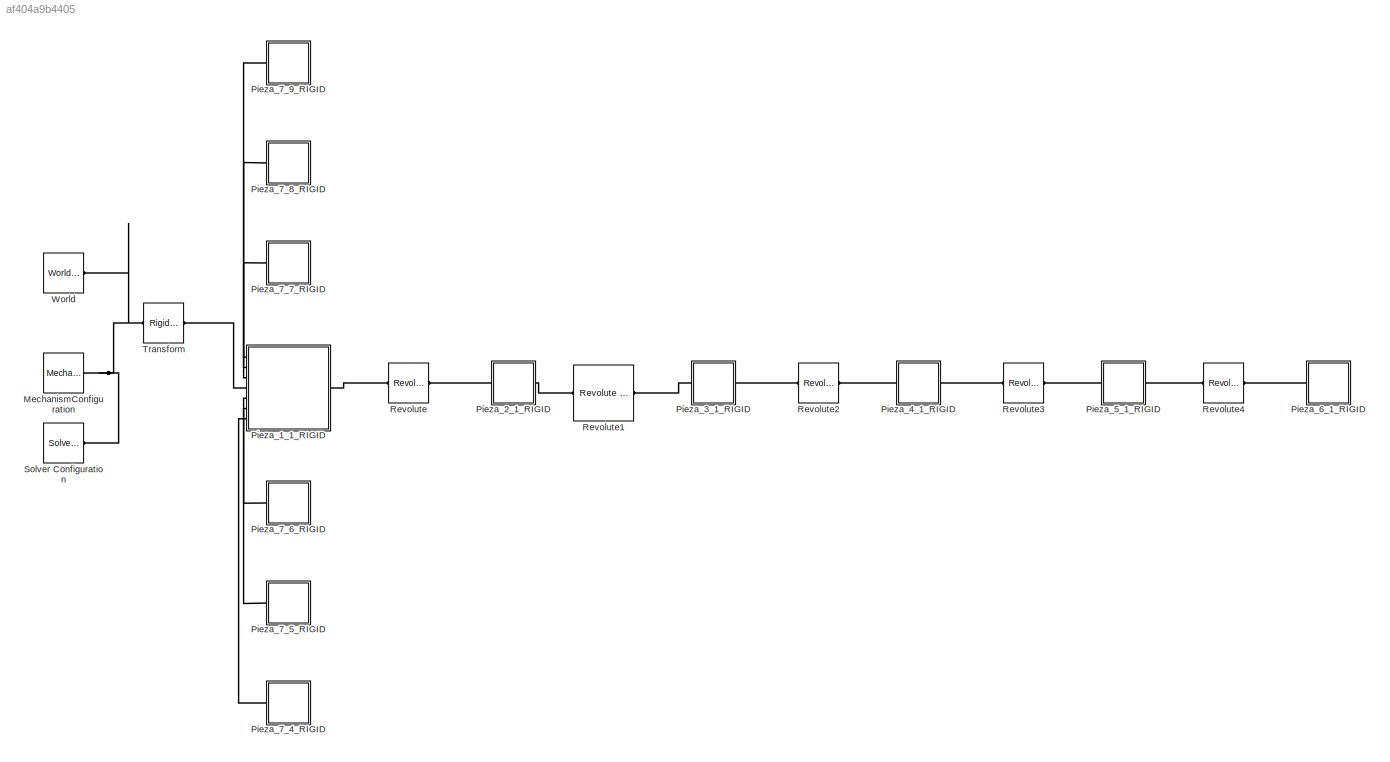
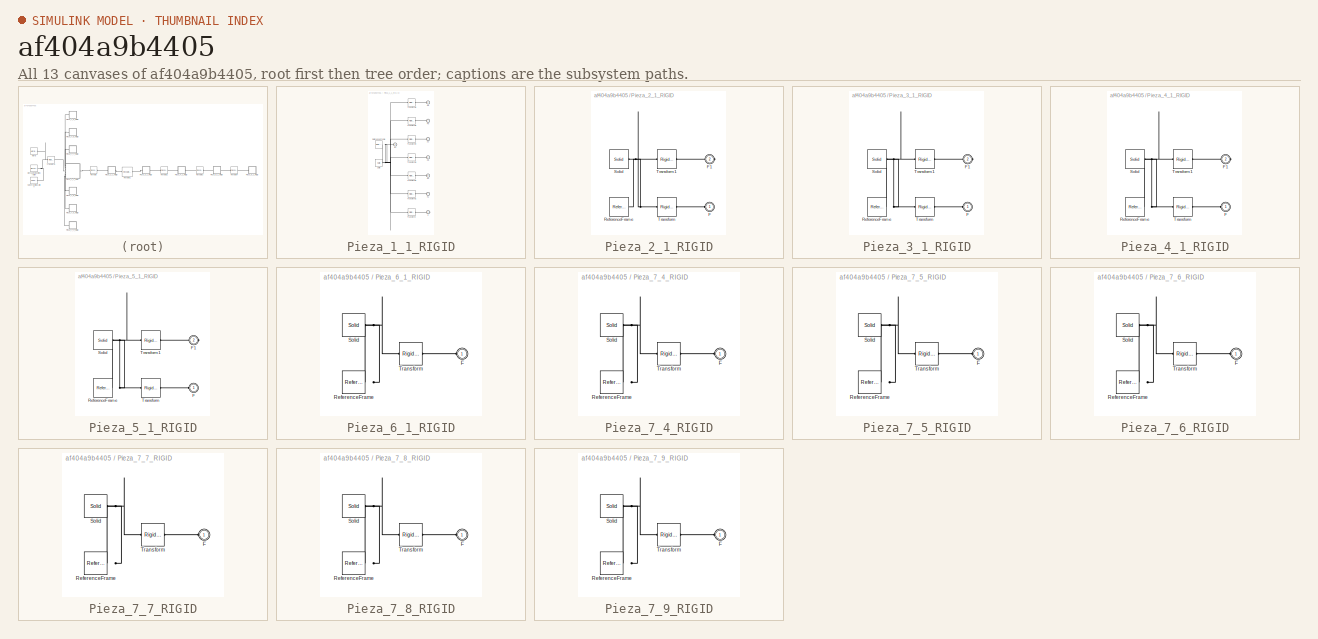
[diagram: thumbnail index - all 13 canvases of the model, root first then tree order]
MODEL slx_af404a9b4405
KIND model
CONFIG AbsTol = auto
CONFIG EnableMultiTasking = off
CONFIG FixedStep = auto
CONFIG MaxStep = auto
CONFIG MinStep = auto
CONFIG RelTol = 1e-3
CONFIG SampleTimeConstraint = Unconstrained
CONFIG Solver = VariableStepAuto
CONFIG SolverName = VariableStepAuto
CONFIG StartTime = 0.0
CONFIG StopTime = 10.0
WORKSPACE source: external: MATLAB File  (data not in archive)
BLOCK [Reference] MechanismConfiguration  REF=sm_lib/Utilities/Mechanism
Configuration
  Ports = [0, 0, 0, 0, 0, 0, 1]
  SourceBlock = sm_lib/Utilities/Mechanism\nConfiguration
  SourceProductBaseCode = MS
  SourceProductName = Simscape Multibody
  SourceType = Mechanism\nConfiguration
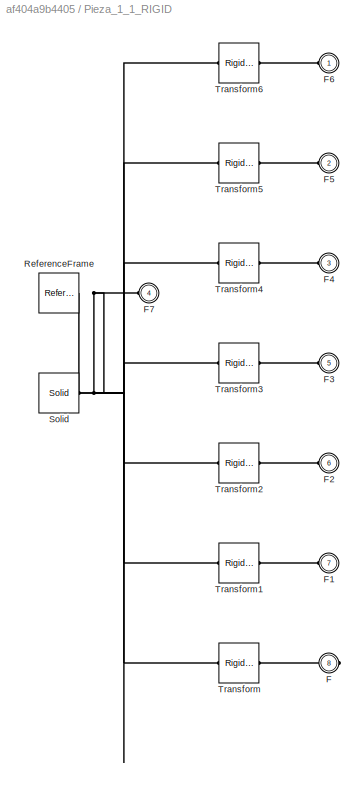
BLOCK [SubSystem] Pieza_1_1_RIGID
  Ports = [0, 0, 0, 0, 0, 7, 1]
  RequestExecContextInheritance = off
BLOCK [PMIOPort] Pieza_1_1_RIGID/F
  Port = 8
  Side = Right
BLOCK [PMIOPort] Pieza_1_1_RIGID/F1
  Port = 7
  Side = Left
BLOCK [PMIOPort] Pieza_1_1_RIGID/F2
  Port = 6
  Side = Left
BLOCK [PMIOPort] Pieza_1_1_RIGID/F3
  Port = 5
  Side = Left
BLOCK [PMIOPort] Pieza_1_1_RIGID/F4
  Port = 3
  Side = Left
BLOCK [PMIOPort] Pieza_1_1_RIGID/F5
  Port = 2
  Side = Left
BLOCK [PMIOPort] Pieza_1_1_RIGID/F6
  Side = Left
BLOCK [PMIOPort] Pieza_1_1_RIGID/F7
  Port = 4
  Side = Left
BLOCK [Reference] Pieza_1_1_RIGID/ReferenceFrame  REF=sm_lib/Frames and
Transforms/Reference
Frame
  Ports = [0, 0, 0, 0, 0, 0, 1]
  SourceBlock = sm_lib/Frames and\nTransforms/Reference\nFrame
  SourceProductBaseCode = MS
  SourceProductName = Simscape Multibody
  SourceType = Reference\nFrame
BLOCK [Reference] Pieza_1_1_RIGID/Solid  REF=sm_lib/Body Elements/Solid
  Ports = [0, 0, 0, 0, 0, 0, 1]
  SourceBlock = sm_lib/Body Elements/Solid
  SourceProductBaseCode = MS
  SourceProductName = Simscape Multibody
  SourceType = Solid
BLOCK [Reference] Pieza_1_1_RIGID/Transform  REF=sm_lib/Frames and
Transforms/Rigid
Transform
  Ports = [0, 0, 0, 0, 0, 1, 1]
  SourceBlock = sm_lib/Frames and\nTransforms/Rigid\nTransform
  SourceProductBaseCode = MS
  SourceProductName = Simscape Multibody
  SourceType = Rigid\nTransform
BLOCK [Reference] Pieza_1_1_RIGID/Transform1  REF=sm_lib/Frames and
Transforms/Rigid
Transform
  Ports = [0, 0, 0, 0, 0, 1, 1]
  SourceBlock = sm_lib/Frames and\nTransforms/Rigid\nTransform
  SourceProductBaseCode = MS
  SourceProductName = Simscape Multibody
  SourceType = Rigid\nTransform
BLOCK [Reference] Pieza_1_1_RIGID/Transform2  REF=sm_lib/Frames and
Transforms/Rigid
Transform
  Ports = [0, 0, 0, 0, 0, 1, 1]
  SourceBlock = sm_lib/Frames and\nTransforms/Rigid\nTransform
  SourceProductBaseCode = MS
  SourceProductName = Simscape Multibody
  SourceType = Rigid\nTransform
BLOCK [Reference] Pieza_1_1_RIGID/Transform3  REF=sm_lib/Frames and
Transforms/Rigid
Transform
  Ports = [0, 0, 0, 0, 0, 1, 1]
  SourceBlock = sm_lib/Frames and\nTransforms/Rigid\nTransform
  SourceProductBaseCode = MS
  SourceProductName = Simscape Multibody
  SourceType = Rigid\nTransform
BLOCK [Reference] Pieza_1_1_RIGID/Transform4  REF=sm_lib/Frames and
Transforms/Rigid
Transform
  Ports = [0, 0, 0, 0, 0, 1, 1]
  SourceBlock = sm_lib/Frames and\nTransforms/Rigid\nTransform
  SourceProductBaseCode = MS
  SourceProductName = Simscape Multibody
  SourceType = Rigid\nTransform
BLOCK [Reference] Pieza_1_1_RIGID/Transform5  REF=sm_lib/Frames and
Transforms/Rigid
Transform
  Ports = [0, 0, 0, 0, 0, 1, 1]
  SourceBlock = sm_lib/Frames and\nTransforms/Rigid\nTransform
  SourceProductBaseCode = MS
  SourceProductName = Simscape Multibody
  SourceType = Rigid\nTransform
BLOCK [Reference] Pieza_1_1_RIGID/Transform6  REF=sm_lib/Frames and
Transforms/Rigid
Transform
  Ports = [0, 0, 0, 0, 0, 1, 1]
  SourceBlock = sm_lib/Frames and\nTransforms/Rigid\nTransform
  SourceProductBaseCode = MS
  SourceProductName = Simscape Multibody
  SourceType = Rigid\nTransform
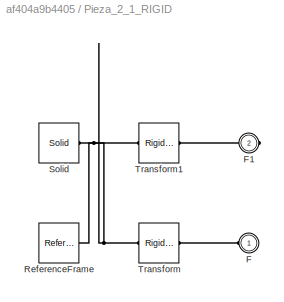
BLOCK [SubSystem] Pieza_2_1_RIGID
  Ports = [0, 0, 0, 0, 0, 1, 1]
  RequestExecContextInheritance = off
BLOCK [PMIOPort] Pieza_2_1_RIGID/F
  Side = Left
BLOCK [PMIOPort] Pieza_2_1_RIGID/F1
  Port = 2
  Side = Right
BLOCK [Reference] Pieza_2_1_RIGID/ReferenceFrame  REF=sm_lib/Frames and
Transforms/Reference
Frame
  Ports = [0, 0, 0, 0, 0, 0, 1]
  SourceBlock = sm_lib/Frames and\nTransforms/Reference\nFrame
  SourceProductBaseCode = MS
  SourceProductName = Simscape Multibody
  SourceType = Reference\nFrame
BLOCK [Reference] Pieza_2_1_RIGID/Solid  REF=sm_lib/Body Elements/Solid
  Ports = [0, 0, 0, 0, 0, 0, 1]
  SourceBlock = sm_lib/Body Elements/Solid
  SourceProductBaseCode = MS
  SourceProductName = Simscape Multibody
  SourceType = Solid
BLOCK [Reference] Pieza_2_1_RIGID/Transform  REF=sm_lib/Frames and
Transforms/Rigid
Transform
  Ports = [0, 0, 0, 0, 0, 1, 1]
  SourceBlock = sm_lib/Frames and\nTransforms/Rigid\nTransform
  SourceProductBaseCode = MS
  SourceProductName = Simscape Multibody
  SourceType = Rigid\nTransform
BLOCK [Reference] Pieza_2_1_RIGID/Transform1  REF=sm_lib/Frames and
Transforms/Rigid
Transform
  Ports = [0, 0, 0, 0, 0, 1, 1]
  SourceBlock = sm_lib/Frames and\nTransforms/Rigid\nTransform
  SourceProductBaseCode = MS
  SourceProductName = Simscape Multibody
  SourceType = Rigid\nTransform
BLOCK [SubSystem] Pieza_3_1_RIGID
  Ports = [0, 0, 0, 0, 0, 1, 1]
  RequestExecContextInheritance = off
BLOCK [PMIOPort] Pieza_3_1_RIGID/F
  Side = Left
BLOCK [PMIOPort] Pieza_3_1_RIGID/F1
  Port = 2
  Side = Right
BLOCK [Reference] Pieza_3_1_RIGID/ReferenceFrame  REF=sm_lib/Frames and
Transforms/Reference
Frame
  Ports = [0, 0, 0, 0, 0, 0, 1]
  SourceBlock = sm_lib/Frames and\nTransforms/Reference\nFrame
  SourceProductBaseCode = MS
  SourceProductName = Simscape Multibody
  SourceType = Reference\nFrame
BLOCK [Reference] Pieza_3_1_RIGID/Solid  REF=sm_lib/Body Elements/Solid
  Ports = [0, 0, 0, 0, 0, 0, 1]
  SourceBlock = sm_lib/Body Elements/Solid
  SourceProductBaseCode = MS
  SourceProductName = Simscape Multibody
  SourceType = Solid
BLOCK [Reference] Pieza_3_1_RIGID/Transform  REF=sm_lib/Frames and
Transforms/Rigid
Transform
  Ports = [0, 0, 0, 0, 0, 1, 1]
  SourceBlock = sm_lib/Frames and\nTransforms/Rigid\nTransform
  SourceProductBaseCode = MS
  SourceProductName = Simscape Multibody
  SourceType = Rigid\nTransform
BLOCK [Reference] Pieza_3_1_RIGID/Transform1  REF=sm_lib/Frames and
Transforms/Rigid
Transform
  Ports = [0, 0, 0, 0, 0, 1, 1]
  SourceBlock = sm_lib/Frames and\nTransforms/Rigid\nTransform
  SourceProductBaseCode = MS
  SourceProductName = Simscape Multibody
  SourceType = Rigid\nTransform
BLOCK [SubSystem] Pieza_4_1_RIGID
  Ports = [0, 0, 0, 0, 0, 1, 1]
  RequestExecContextInheritance = off
BLOCK [PMIOPort] Pieza_4_1_RIGID/F
  Side = Left
BLOCK [PMIOPort] Pieza_4_1_RIGID/F1
  Port = 2
  Side = Right
BLOCK [Reference] Pieza_4_1_RIGID/ReferenceFrame  REF=sm_lib/Frames and
Transforms/Reference
Frame
  Ports = [0, 0, 0, 0, 0, 0, 1]
  SourceBlock = sm_lib/Frames and\nTransforms/Reference\nFrame
  SourceProductBaseCode = MS
  SourceProductName = Simscape Multibody
  SourceType = Reference\nFrame
BLOCK [Reference] Pieza_4_1_RIGID/Solid  REF=sm_lib/Body Elements/Solid
  Ports = [0, 0, 0, 0, 0, 0, 1]
  SourceBlock = sm_lib/Body Elements/Solid
  SourceProductBaseCode = MS
  SourceProductName = Simscape Multibody
  SourceType = Solid
BLOCK [Reference] Pieza_4_1_RIGID/Transform  REF=sm_lib/Frames and
Transforms/Rigid
Transform
  Ports = [0, 0, 0, 0, 0, 1, 1]
  SourceBlock = sm_lib/Frames and\nTransforms/Rigid\nTransform
  SourceProductBaseCode = MS
  SourceProductName = Simscape Multibody
  SourceType = Rigid\nTransform
BLOCK [Reference] Pieza_4_1_RIGID/Transform1  REF=sm_lib/Frames and
Transforms/Rigid
Transform
  Ports = [0, 0, 0, 0, 0, 1, 1]
  SourceBlock = sm_lib/Frames and\nTransforms/Rigid\nTransform
  SourceProductBaseCode = MS
  SourceProductName = Simscape Multibody
  SourceType = Rigid\nTransform
BLOCK [SubSystem] Pieza_5_1_RIGID
  Ports = [0, 0, 0, 0, 0, 1, 1]
  RequestExecContextInheritance = off
BLOCK [PMIOPort] Pieza_5_1_RIGID/F
  Side = Left
BLOCK [PMIOPort] Pieza_5_1_RIGID/F1
  Port = 2
  Side = Right
BLOCK [Reference] Pieza_5_1_RIGID/ReferenceFrame  REF=sm_lib/Frames and
Transforms/Reference
Frame
  Ports = [0, 0, 0, 0, 0, 0, 1]
  SourceBlock = sm_lib/Frames and\nTransforms/Reference\nFrame
  SourceProductBaseCode = MS
  SourceProductName = Simscape Multibody
  SourceType = Reference\nFrame
BLOCK [Reference] Pieza_5_1_RIGID/Solid  REF=sm_lib/Body Elements/Solid
  Ports = [0, 0, 0, 0, 0, 0, 1]
  SourceBlock = sm_lib/Body Elements/Solid
  SourceProductBaseCode = MS
  SourceProductName = Simscape Multibody
  SourceType = Solid
BLOCK [Reference] Pieza_5_1_RIGID/Transform  REF=sm_lib/Frames and
Transforms/Rigid
Transform
  Ports = [0, 0, 0, 0, 0, 1, 1]
  SourceBlock = sm_lib/Frames and\nTransforms/Rigid\nTransform
  SourceProductBaseCode = MS
  SourceProductName = Simscape Multibody
  SourceType = Rigid\nTransform
BLOCK [Reference] Pieza_5_1_RIGID/Transform1  REF=sm_lib/Frames and
Transforms/Rigid
Transform
  Ports = [0, 0, 0, 0, 0, 1, 1]
  SourceBlock = sm_lib/Frames and\nTransforms/Rigid\nTransform
  SourceProductBaseCode = MS
  SourceProductName = Simscape Multibody
  SourceType = Rigid\nTransform
BLOCK [SubSystem] Pieza_6_1_RIGID
  Ports = [0, 0, 0, 0, 0, 1]
  RequestExecContextInheritance = off
BLOCK [PMIOPort] Pieza_6_1_RIGID/F
  Side = Left
BLOCK [Reference] Pieza_6_1_RIGID/ReferenceFrame  REF=sm_lib/Frames and
Transforms/Reference
Frame
  Ports = [0, 0, 0, 0, 0, 0, 1]
  SourceBlock = sm_lib/Frames and\nTransforms/Reference\nFrame
  SourceProductBaseCode = MS
  SourceProductName = Simscape Multibody
  SourceType = Reference\nFrame
BLOCK [Reference] Pieza_6_1_RIGID/Solid  REF=sm_lib/Body Elements/Solid
  Ports = [0, 0, 0, 0, 0, 0, 1]
  SourceBlock = sm_lib/Body Elements/Solid
  SourceProductBaseCode = MS
  SourceProductName = Simscape Multibody
  SourceType = Solid
BLOCK [Reference] Pieza_6_1_RIGID/Transform  REF=sm_lib/Frames and
Transforms/Rigid
Transform
  Ports = [0, 0, 0, 0, 0, 1, 1]
  SourceBlock = sm_lib/Frames and\nTransforms/Rigid\nTransform
  SourceProductBaseCode = MS
  SourceProductName = Simscape Multibody
  SourceType = Rigid\nTransform
BLOCK [SubSystem] Pieza_7_4_RIGID
  Ports = [0, 0, 0, 0, 0, 1]
  RequestExecContextInheritance = off
BLOCK [PMIOPort] Pieza_7_4_RIGID/F
  Side = Left
BLOCK [Reference] Pieza_7_4_RIGID/ReferenceFrame  REF=sm_lib/Frames and
Transforms/Reference
Frame
  Ports = [0, 0, 0, 0, 0, 0, 1]
  SourceBlock = sm_lib/Frames and\nTransforms/Reference\nFrame
  SourceProductBaseCode = MS
  SourceProductName = Simscape Multibody
  SourceType = Reference\nFrame
BLOCK [Reference] Pieza_7_4_RIGID/Solid  REF=sm_lib/Body Elements/Solid
  Ports = [0, 0, 0, 0, 0, 0, 1]
  SourceBlock = sm_lib/Body Elements/Solid
  SourceProductBaseCode = MS
  SourceProductName = Simscape Multibody
  SourceType = Solid
BLOCK [Reference] Pieza_7_4_RIGID/Transform  REF=sm_lib/Frames and
Transforms/Rigid
Transform
  Ports = [0, 0, 0, 0, 0, 1, 1]
  SourceBlock = sm_lib/Frames and\nTransforms/Rigid\nTransform
  SourceProductBaseCode = MS
  SourceProductName = Simscape Multibody
  SourceType = Rigid\nTransform
BLOCK [SubSystem] Pieza_7_5_RIGID
  Ports = [0, 0, 0, 0, 0, 1]
  RequestExecContextInheritance = off
BLOCK [PMIOPort] Pieza_7_5_RIGID/F
  Side = Left
BLOCK [Reference] Pieza_7_5_RIGID/ReferenceFrame  REF=sm_lib/Frames and
Transforms/Reference
Frame
  Ports = [0, 0, 0, 0, 0, 0, 1]
  SourceBlock = sm_lib/Frames and\nTransforms/Reference\nFrame
  SourceProductBaseCode = MS
  SourceProductName = Simscape Multibody
  SourceType = Reference\nFrame
BLOCK [Reference] Pieza_7_5_RIGID/Solid  REF=sm_lib/Body Elements/Solid
  Ports = [0, 0, 0, 0, 0, 0, 1]
  SourceBlock = sm_lib/Body Elements/Solid
  SourceProductBaseCode = MS
  SourceProductName = Simscape Multibody
  SourceType = Solid
BLOCK [Reference] Pieza_7_5_RIGID/Transform  REF=sm_lib/Frames and
Transforms/Rigid
Transform
  Ports = [0, 0, 0, 0, 0, 1, 1]
  SourceBlock = sm_lib/Frames and\nTransforms/Rigid\nTransform
  SourceProductBaseCode = MS
  SourceProductName = Simscape Multibody
  SourceType = Rigid\nTransform
BLOCK [SubSystem] Pieza_7_6_RIGID
  Ports = [0, 0, 0, 0, 0, 1]
  RequestExecContextInheritance = off
BLOCK [PMIOPort] Pieza_7_6_RIGID/F
  Side = Left
BLOCK [Reference] Pieza_7_6_RIGID/ReferenceFrame  REF=sm_lib/Frames and
Transforms/Reference
Frame
  Ports = [0, 0, 0, 0, 0, 0, 1]
  SourceBlock = sm_lib/Frames and\nTransforms/Reference\nFrame
  SourceProductBaseCode = MS
  SourceProductName = Simscape Multibody
  SourceType = Reference\nFrame
BLOCK [Reference] Pieza_7_6_RIGID/Solid  REF=sm_lib/Body Elements/Solid
  Ports = [0, 0, 0, 0, 0, 0, 1]
  SourceBlock = sm_lib/Body Elements/Solid
  SourceProductBaseCode = MS
  SourceProductName = Simscape Multibody
  SourceType = Solid
BLOCK [Reference] Pieza_7_6_RIGID/Transform  REF=sm_lib/Frames and
Transforms/Rigid
Transform
  Ports = [0, 0, 0, 0, 0, 1, 1]
  SourceBlock = sm_lib/Frames and\nTransforms/Rigid\nTransform
  SourceProductBaseCode = MS
  SourceProductName = Simscape Multibody
  SourceType = Rigid\nTransform
BLOCK [SubSystem] Pieza_7_7_RIGID
  Ports = [0, 0, 0, 0, 0, 1]
  RequestExecContextInheritance = off
BLOCK [PMIOPort] Pieza_7_7_RIGID/F
  Side = Left
BLOCK [Reference] Pieza_7_7_RIGID/ReferenceFrame  REF=sm_lib/Frames and
Transforms/Reference
Frame
  Ports = [0, 0, 0, 0, 0, 0, 1]
  SourceBlock = sm_lib/Frames and\nTransforms/Reference\nFrame
  SourceProductBaseCode = MS
  SourceProductName = Simscape Multibody
  SourceType = Reference\nFrame
BLOCK [Reference] Pieza_7_7_RIGID/Solid  REF=sm_lib/Body Elements/Solid
  Ports = [0, 0, 0, 0, 0, 0, 1]
  SourceBlock = sm_lib/Body Elements/Solid
  SourceProductBaseCode = MS
  SourceProductName = Simscape Multibody
  SourceType = Solid
BLOCK [Reference] Pieza_7_7_RIGID/Transform  REF=sm_lib/Frames and
Transforms/Rigid
Transform
  Ports = [0, 0, 0, 0, 0, 1, 1]
  SourceBlock = sm_lib/Frames and\nTransforms/Rigid\nTransform
  SourceProductBaseCode = MS
  SourceProductName = Simscape Multibody
  SourceType = Rigid\nTransform
BLOCK [SubSystem] Pieza_7_8_RIGID
  Ports = [0, 0, 0, 0, 0, 1]
  RequestExecContextInheritance = off
BLOCK [PMIOPort] Pieza_7_8_RIGID/F
  Side = Left
BLOCK [Reference] Pieza_7_8_RIGID/ReferenceFrame  REF=sm_lib/Frames and
Transforms/Reference
Frame
  Ports = [0, 0, 0, 0, 0, 0, 1]
  SourceBlock = sm_lib/Frames and\nTransforms/Reference\nFrame
  SourceProductBaseCode = MS
  SourceProductName = Simscape Multibody
  SourceType = Reference\nFrame
BLOCK [Reference] Pieza_7_8_RIGID/Solid  REF=sm_lib/Body Elements/Solid
  Ports = [0, 0, 0, 0, 0, 0, 1]
  SourceBlock = sm_lib/Body Elements/Solid
  SourceProductBaseCode = MS
  SourceProductName = Simscape Multibody
  SourceType = Solid
BLOCK [Reference] Pieza_7_8_RIGID/Transform  REF=sm_lib/Frames and
Transforms/Rigid
Transform
  Ports = [0, 0, 0, 0, 0, 1, 1]
  SourceBlock = sm_lib/Frames and\nTransforms/Rigid\nTransform
  SourceProductBaseCode = MS
  SourceProductName = Simscape Multibody
  SourceType = Rigid\nTransform
BLOCK [SubSystem] Pieza_7_9_RIGID
  Ports = [0, 0, 0, 0, 0, 1]
  RequestExecContextInheritance = off
BLOCK [PMIOPort] Pieza_7_9_RIGID/F
  Side = Left
BLOCK [Reference] Pieza_7_9_RIGID/ReferenceFrame  REF=sm_lib/Frames and
Transforms/Reference
Frame
  Ports = [0, 0, 0, 0, 0, 0, 1]
  SourceBlock = sm_lib/Frames and\nTransforms/Reference\nFrame
  SourceProductBaseCode = MS
  SourceProductName = Simscape Multibody
  SourceType = Reference\nFrame
BLOCK [Reference] Pieza_7_9_RIGID/Solid  REF=sm_lib/Body Elements/Solid
  Ports = [0, 0, 0, 0, 0, 0, 1]
  SourceBlock = sm_lib/Body Elements/Solid
  SourceProductBaseCode = MS
  SourceProductName = Simscape Multibody
  SourceType = Solid
BLOCK [Reference] Pieza_7_9_RIGID/Transform  REF=sm_lib/Frames and
Transforms/Rigid
Transform
  Ports = [0, 0, 0, 0, 0, 1, 1]
  SourceBlock = sm_lib/Frames and\nTransforms/Rigid\nTransform
  SourceProductBaseCode = MS
  SourceProductName = Simscape Multibody
  SourceType = Rigid\nTransform
BLOCK [Reference] Revolute  REF=sm_lib/Joints/Revolute Joint
  Ports = [0, 0, 0, 0, 0, 1, 1]
  SourceBlock = sm_lib/Joints/Revolute Joint
  SourceProductBaseCode = MS
  SourceProductName = Simscape Multibody
  SourceType = Revolute Joint
BLOCK [Reference] Revolute1  REF=sm_lib/Joints/Revolute Joint
  Ports = [0, 0, 0, 0, 0, 1, 1]
  SourceBlock = sm_lib/Joints/Revolute Joint
  SourceProductBaseCode = MS
  SourceProductName = Simscape Multibody
  SourceType = Revolute Joint
BLOCK [Reference] Revolute2  REF=sm_lib/Joints/Revolute Joint
  Ports = [0, 0, 0, 0, 0, 1, 1]
  SourceBlock = sm_lib/Joints/Revolute Joint
  SourceProductBaseCode = MS
  SourceProductName = Simscape Multibody
  SourceType = Revolute Joint
BLOCK [Reference] Revolute3  REF=sm_lib/Joints/Revolute Joint
  Ports = [0, 0, 0, 0, 0, 1, 1]
  SourceBlock = sm_lib/Joints/Revolute Joint
  SourceProductBaseCode = MS
  SourceProductName = Simscape Multibody
  SourceType = Revolute Joint
BLOCK [Reference] Revolute4  REF=sm_lib/Joints/Revolute Joint
  Ports = [0, 0, 0, 0, 0, 1, 1]
  SourceBlock = sm_lib/Joints/Revolute Joint
  SourceProductBaseCode = MS
  SourceProductName = Simscape Multibody
  SourceType = Revolute Joint
BLOCK [Reference] Solver Configuration  REF=nesl_utility/Solver
Configuration
  Ports = [0, 0, 0, 0, 0, 0, 1]
  SourceBlock = nesl_utility/Solver\nConfiguration
  SourceProductBaseCode = SS
  SourceProductName = Simscape
  SourceType = Solver\nConfiguration
BLOCK [Reference] Transform  REF=sm_lib/Frames and
Transforms/Rigid
Transform
  Ports = [0, 0, 0, 0, 0, 1, 1]
  SourceBlock = sm_lib/Frames and\nTransforms/Rigid\nTransform
  SourceProductBaseCode = MS
  SourceProductName = Simscape Multibody
  SourceType = Rigid\nTransform
BLOCK [Reference] World  REF=sm_lib/Frames and
Transforms/World Frame
  Ports = [0, 0, 0, 0, 0, 0, 1]
  SourceBlock = sm_lib/Frames and\nTransforms/World Frame
  SourceProductBaseCode = MS
  SourceProductName = Simscape Multibody
  SourceType = World Frame
PNET net1: MechanismConfiguration:RConn1 -- Solver Configuration:RConn1 -- Transform:LConn1 -- World:RConn1
PLINE Pieza_1_1_RIGID/F1:RConn1 -- Pieza_1_1_RIGID/Transform1:RConn1
PLINE Pieza_1_1_RIGID/F2:RConn1 -- Pieza_1_1_RIGID/Transform2:RConn1
PLINE Pieza_1_1_RIGID/F3:RConn1 -- Pieza_1_1_RIGID/Transform3:RConn1
PLINE Pieza_1_1_RIGID/F4:RConn1 -- Pieza_1_1_RIGID/Transform4:RConn1
PLINE Pieza_1_1_RIGID/F5:RConn1 -- Pieza_1_1_RIGID/Transform5:RConn1
PLINE Pieza_1_1_RIGID/F6:RConn1 -- Pieza_1_1_RIGID/Transform6:RConn1
PNET net2: Pieza_1_1_RIGID/F7:RConn1 -- Pieza_1_1_RIGID/ReferenceFrame:RConn1 -- Pieza_1_1_RIGID/Solid:RConn1 -- Pieza_1_1_RIGID/Transform1:LConn1 -- Pieza_1_1_RIGID/Transform2:LConn1 -- Pieza_1_1_RIGID/Transform3:LConn1 -- Pieza_1_1_RIGID/Transform4:LConn1 -- Pieza_1_1_RIGID/Transform5:LConn1 -- Pieza_1_1_RIGID/Transform6:LConn1 -- Pieza_1_1_RIGID/Transform:LConn1
PLINE Pieza_1_1_RIGID/F:RConn1 -- Pieza_1_1_RIGID/Transform:RConn1
PLINE Pieza_1_1_RIGID:LConn1 -- Pieza_7_9_RIGID:LConn1
PLINE Pieza_1_1_RIGID:LConn2 -- Pieza_7_8_RIGID:LConn1
PLINE Pieza_1_1_RIGID:LConn3 -- Pieza_7_7_RIGID:LConn1
PLINE Pieza_1_1_RIGID:LConn4 -- Transform:RConn1
PLINE Pieza_1_1_RIGID:LConn5 -- Pieza_7_6_RIGID:LConn1
PLINE Pieza_1_1_RIGID:LConn6 -- Pieza_7_5_RIGID:LConn1
PLINE Pieza_1_1_RIGID:LConn7 -- Pieza_7_4_RIGID:LConn1
PLINE Pieza_1_1_RIGID:RConn1 -- Revolute:LConn1
PLINE Pieza_2_1_RIGID/F1:RConn1 -- Pieza_2_1_RIGID/Transform1:RConn1
PLINE Pieza_2_1_RIGID/F:RConn1 -- Pieza_2_1_RIGID/Transform:RConn1
PNET net3: Pieza_2_1_RIGID/ReferenceFrame:RConn1 -- Pieza_2_1_RIGID/Solid:RConn1 -- Pieza_2_1_RIGID/Transform1:LConn1 -- Pieza_2_1_RIGID/Transform:LConn1
PLINE Pieza_2_1_RIGID:LConn1 -- Revolute:RConn1
PLINE Pieza_2_1_RIGID:RConn1 -- Revolute1:LConn1
PLINE Pieza_3_1_RIGID/F1:RConn1 -- Pieza_3_1_RIGID/Transform1:RConn1
PLINE Pieza_3_1_RIGID/F:RConn1 -- Pieza_3_1_RIGID/Transform:RConn1
PNET net4: Pieza_3_1_RIGID/ReferenceFrame:RConn1 -- Pieza_3_1_RIGID/Solid:RConn1 -- Pieza_3_1_RIGID/Transform1:LConn1 -- Pieza_3_1_RIGID/Transform:LConn1
PLINE Pieza_3_1_RIGID:LConn1 -- Revolute1:RConn1
PLINE Pieza_3_1_RIGID:RConn1 -- Revolute2:LConn1
PLINE Pieza_4_1_RIGID/F1:RConn1 -- Pieza_4_1_RIGID/Transform1:RConn1
PLINE Pieza_4_1_RIGID/F:RConn1 -- Pieza_4_1_RIGID/Transform:RConn1
PNET net5: Pieza_4_1_RIGID/ReferenceFrame:RConn1 -- Pieza_4_1_RIGID/Solid:RConn1 -- Pieza_4_1_RIGID/Transform1:LConn1 -- Pieza_4_1_RIGID/Transform:LConn1
PLINE Pieza_4_1_RIGID:LConn1 -- Revolute2:RConn1
PLINE Pieza_4_1_RIGID:RConn1 -- Revolute3:LConn1
PLINE Pieza_5_1_RIGID/F1:RConn1 -- Pieza_5_1_RIGID/Transform1:RConn1
PLINE Pieza_5_1_RIGID/F:RConn1 -- Pieza_5_1_RIGID/Transform:RConn1
PNET net6: Pieza_5_1_RIGID/ReferenceFrame:RConn1 -- Pieza_5_1_RIGID/Solid:RConn1 -- Pieza_5_1_RIGID/Transform1:LConn1 -- Pieza_5_1_RIGID/Transform:LConn1
PLINE Pieza_5_1_RIGID:LConn1 -- Revolute3:RConn1
PLINE Pieza_5_1_RIGID:RConn1 -- Revolute4:LConn1
PLINE Pieza_6_1_RIGID/F:RConn1 -- Pieza_6_1_RIGID/Transform:RConn1
PNET net7: Pieza_6_1_RIGID/ReferenceFrame:RConn1 -- Pieza_6_1_RIGID/Solid:RConn1 -- Pieza_6_1_RIGID/Transform:LConn1
PLINE Pieza_6_1_RIGID:LConn1 -- Revolute4:RConn1
PLINE Pieza_7_4_RIGID/F:RConn1 -- Pieza_7_4_RIGID/Transform:RConn1
PNET net8: Pieza_7_4_RIGID/ReferenceFrame:RConn1 -- Pieza_7_4_RIGID/Solid:RConn1 -- Pieza_7_4_RIGID/Transform:LConn1
PLINE Pieza_7_5_RIGID/F:RConn1 -- Pieza_7_5_RIGID/Transform:RConn1
PNET net9: Pieza_7_5_RIGID/ReferenceFrame:RConn1 -- Pieza_7_5_RIGID/Solid:RConn1 -- Pieza_7_5_RIGID/Transform:LConn1
PLINE Pieza_7_6_RIGID/F:RConn1 -- Pieza_7_6_RIGID/Transform:RConn1
PNET net10: Pieza_7_6_RIGID/ReferenceFrame:RConn1 -- Pieza_7_6_RIGID/Solid:RConn1 -- Pieza_7_6_RIGID/Transform:LConn1
PLINE Pieza_7_7_RIGID/F:RConn1 -- Pieza_7_7_RIGID/Transform:RConn1
PNET net11: Pieza_7_7_RIGID/ReferenceFrame:RConn1 -- Pieza_7_7_RIGID/Solid:RConn1 -- Pieza_7_7_RIGID/Transform:LConn1
PLINE Pieza_7_8_RIGID/F:RConn1 -- Pieza_7_8_RIGID/Transform:RConn1
PNET net12: Pieza_7_8_RIGID/ReferenceFrame:RConn1 -- Pieza_7_8_RIGID/Solid:RConn1 -- Pieza_7_8_RIGID/Transform:LConn1
PLINE Pieza_7_9_RIGID/F:RConn1 -- Pieza_7_9_RIGID/Transform:RConn1
PNET net13: Pieza_7_9_RIGID/ReferenceFrame:RConn1 -- Pieza_7_9_RIGID/Solid:RConn1 -- Pieza_7_9_RIGID/Transform:LConn1
note: PNET lines group multi-terminal physical nets as a canonical sorted terminal list (undirected conserving connections); 2-terminal nets keep the pairwise PLINE form
